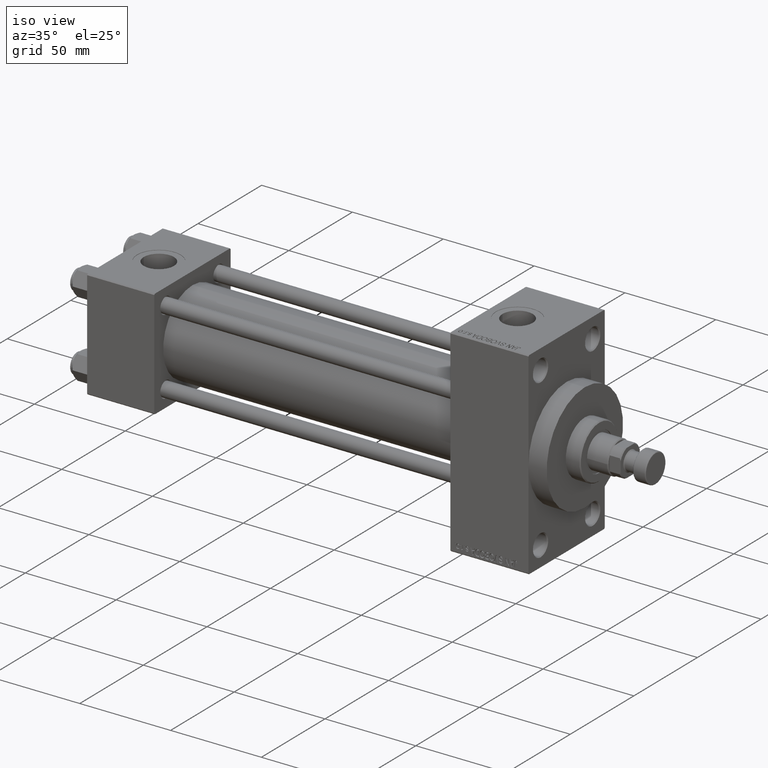
[diagram: clean part render]
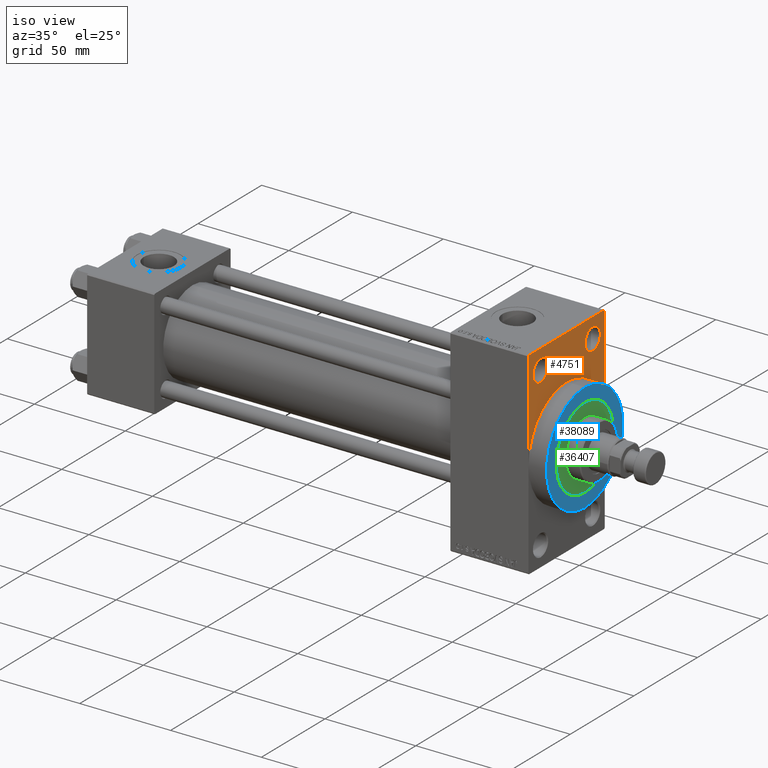
[diagram: same view with three faces highlighted in distinct colors, each labeled with its STEP entity id]
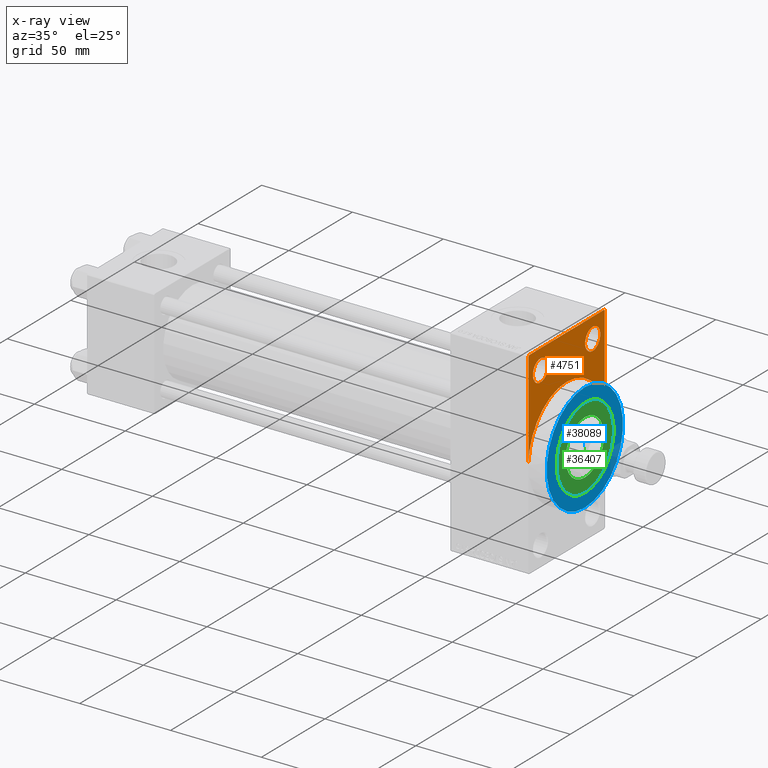
[diagram: x-ray of the same camera — body ghosted, the three highlighted faces saturated]
A machine part, iso view with three faces highlighted in distinct colors.
The next image is the same camera in x-ray (body ghosted, the three faces saturated) — at least one of them is partly hidden behind the body in this view.
Their STEP definitions:

[orange] entity #4751 — the highlighted planar face has unit normal (-1, 0, 0).
#108 = VERTEX_POINT ( 'NONE', #25134 ) ;
#388 = DIRECTION ( 'NONE',  ( 0.000000000000000000, 0.000000000000000000, 1.000000000000000000 ) ) ;
#457 = EDGE_CURVE ( 'NONE', #35063, #24671, #24903, .T. ) ;
#628 = CARTESIAN_POINT ( 'NONE',  ( 243.0000000000000000, 29.99999999999999645, 54.49999999999999289 ) ) ;
#860 = CARTESIAN_POINT ( 'NONE',  ( 243.0000000000000000, -30.00000000000000000, 54.00000000000002842 ) ) ;
#1334 = CARTESIAN_POINT ( 'NONE',  ( 243.0000000000000000, 29.49999999999999645, 54.49999999999999289 ) ) ;
#2226 = CARTESIAN_POINT ( 'NONE',  ( 243.0000000000000000, 29.99999999999999645, 53.99999999999996447 ) ) ;
#2247 = CARTESIAN_POINT ( 'NONE',  ( 243.0000000000000000, -20.50000000000000000, 37.50000000000002132 ) ) ;
#2938 = CIRCLE ( 'NONE', #38273, 5.999999999999977796 ) ;
#2994 = DIRECTION ( 'NONE',  ( 1.000000000000000000, 0.000000000000000000, 0.000000000000000000 ) ) ;
#3073 = ORIENTED_EDGE ( 'NONE', *, *, #49648, .F. ) ;
#3496 = CARTESIAN_POINT ( 'NONE',  ( 243.0000000000000000, 20.50000000000000000, 49.49999999999997158 ) ) ;
#4751 = ADVANCED_FACE ( 'NONE', ( #39638, #32341, #9214 ), #5175, .F. ) ;
#5175 = PLANE ( 'NONE',  #42813 ) ;
#5744 = DIRECTION ( 'NONE',  ( -1.000000000000000000, 0.000000000000000000, -0.000000000000000000 ) ) ;
#7147 = LINE ( 'NONE', #22471, #19844 ) ;
#7584 = AXIS2_PLACEMENT_3D ( 'NONE', #30832, #31572, #43135 ) ;
#8001 = DIRECTION ( 'NONE',  ( -1.000000000000000000, 0.000000000000000000, -0.000000000000000000 ) ) ;
#9128 = ORIENTED_EDGE ( 'NONE', *, *, #43663, .F. ) ;
#9143 = EDGE_CURVE ( 'NONE', #39744, #39632, #33109, .T. ) ;
#9214 = FACE_OUTER_BOUND ( 'NONE', #25297, .T. ) ;
#10417 = CIRCLE ( 'NONE', #24861, 5.999999999999977796 ) ;
#11092 = ORIENTED_EDGE ( 'NONE', *, *, #9143, .T. ) ;
#11173 = VERTEX_POINT ( 'NONE', #44969 ) ;
#12398 = VECTOR ( 'NONE', #38703, 1000.000000000000000 ) ;
#12405 = DIRECTION ( 'NONE',  ( 0.000000000000000000, -0.7071067811865279218, 0.7071067811865672237 ) ) ;
#12579 = CARTESIAN_POINT ( 'NONE',  ( 243.0000000000000000, -20.50000000000000000, 49.49999999999997158 ) ) ;
#13403 = ORIENTED_EDGE ( 'NONE', *, *, #47523, .T. ) ;
#14148 = ORIENTED_EDGE ( 'NONE', *, *, #457, .T. ) ;
#15378 = ORIENTED_EDGE ( 'NONE', *, *, #48317, .T. ) ;
#15959 = DIRECTION ( 'NONE',  ( 0.000000000000000000, -1.000000000000000000, 1.156482317317871478E-16 ) ) ;
#16422 = ORIENTED_EDGE ( 'NONE', *, *, #18486, .T. ) ;
#16549 = DIRECTION ( 'NONE',  ( 0.000000000000000000, 0.000000000000000000, 1.000000000000000000 ) ) ;
#17652 = EDGE_LOOP ( 'NONE', ( #21594, #14148 ) ) ;
#18326 = VERTEX_POINT ( 'NONE', #49667 ) ;
#18486 = EDGE_CURVE ( 'NONE', #41648, #31998, #20454, .T. ) ;
#18760 = CIRCLE ( 'NONE', #22791, 30.00000000000000000 ) ;
#19048 = DIRECTION ( 'NONE',  ( 0.000000000000000000, 0.000000000000000000, 1.000000000000000000 ) ) ;
#19844 = VECTOR ( 'NONE', #37325, 1000.000000000000000 ) ;
#19950 = CARTESIAN_POINT ( 'NONE',  ( 243.0000000000000000, -29.50000000000000355, 54.50000000000000000 ) ) ;
#20454 = LINE ( 'NONE', #860, #46989 ) ;
#20514 = CARTESIAN_POINT ( 'NONE',  ( 243.0000000000000000, 0.000000000000000000, 0.000000000000000000 ) ) ;
#20849 = ORIENTED_EDGE ( 'NONE', *, *, #35483, .T. ) ;
#21594 = ORIENTED_EDGE ( 'NONE', *, *, #28971, .T. ) ;
#21841 = AXIS2_PLACEMENT_3D ( 'NONE', #40202, #5744, #36677 ) ;
#22471 = CARTESIAN_POINT ( 'NONE',  ( 243.0000000000000000, 29.99999999999999645, 54.49999999999999289 ) ) ;
#22791 = AXIS2_PLACEMENT_3D ( 'NONE', #30160, #2994, #37449 ) ;
#23257 = CARTESIAN_POINT ( 'NONE',  ( 243.0000000000000000, -20.50000000000000000, 43.50000000000000000 ) ) ;
#23496 = LINE ( 'NONE', #628, #32617 ) ;
#24671 = VERTEX_POINT ( 'NONE', #44190 ) ;
#24861 = AXIS2_PLACEMENT_3D ( 'NONE', #41944, #8001, #19048 ) ;
#24903 = CIRCLE ( 'NONE', #31351, 5.999999999999977796 ) ;
#25134 = CARTESIAN_POINT ( 'NONE',  ( 243.0000000000000000, 29.49999999999999645, 54.49999999999999289 ) ) ;
#25297 = EDGE_LOOP ( 'NONE', ( #13403, #16422, #32181, #9128, #47232, #3073, #20849 ) ) ;
#27293 = DIRECTION ( 'NONE',  ( -1.000000000000000000, 0.000000000000000000, -0.000000000000000000 ) ) ;
#27623 = CARTESIAN_POINT ( 'NONE',  ( 243.0000000000000000, 20.50000000000000000, 43.50000000000000000 ) ) ;
#27752 = VERTEX_POINT ( 'NONE', #2226 ) ;
#28735 = LINE ( 'NONE', #1334, #33125 ) ;
#28971 = EDGE_CURVE ( 'NONE', #24671, #35063, #10417, .T. ) ;
#30160 = CARTESIAN_POINT ( 'NONE',  ( 243.0000000000000000, 0.000000000000000000, 0.000000000000000000 ) ) ;
#30832 = CARTESIAN_POINT ( 'NONE',  ( 243.0000000000000000, 0.000000000000000000, 0.000000000000000000 ) ) ;
#31351 = AXIS2_PLACEMENT_3D ( 'NONE', #27623, #35664, #16549 ) ;
#31566 = CARTESIAN_POINT ( 'NONE',  ( 243.0000000000000000, -30.00000000000000000, 54.00000000000002842 ) ) ;
#31572 = DIRECTION ( 'NONE',  ( 1.000000000000000000, 0.000000000000000000, 0.000000000000000000 ) ) ;
#31998 = VERTEX_POINT ( 'NONE', #31566 ) ;
#32181 = ORIENTED_EDGE ( 'NONE', *, *, #42978, .T. ) ;
#32341 = FACE_BOUND ( 'NONE', #17652, .T. ) ;
#32617 = VECTOR ( 'NONE', #15959, 1000.000000000000000 ) ;
#32754 = VERTEX_POINT ( 'NONE', #44721 ) ;
#33109 = CIRCLE ( 'NONE', #21841, 5.999999999999977796 ) ;
#33125 = VECTOR ( 'NONE', #12405, 1000.000000000000000 ) ;
#35063 = VERTEX_POINT ( 'NONE', #3496 ) ;
#35483 = EDGE_CURVE ( 'NONE', #27752, #108, #28735, .T. ) ;
#35664 = DIRECTION ( 'NONE',  ( -1.000000000000000000, 0.000000000000000000, -0.000000000000000000 ) ) ;
#35862 = DIRECTION ( 'NONE',  ( -1.000000000000000000, 0.000000000000000000, -0.000000000000000000 ) ) ;
#36677 = DIRECTION ( 'NONE',  ( 0.000000000000000000, 0.000000000000000000, 1.000000000000000000 ) ) ;
#37325 = DIRECTION ( 'NONE',  ( 0.000000000000000000, 0.000000000000000000, -1.000000000000000000 ) ) ;
#37449 = DIRECTION ( 'NONE',  ( 0.000000000000000000, 0.000000000000000000, -1.000000000000000000 ) ) ;
#38273 = AXIS2_PLACEMENT_3D ( 'NONE', #23257, #27293, #388 ) ;
#38317 = EDGE_LOOP ( 'NONE', ( #11092, #15378 ) ) ;
#38454 = CARTESIAN_POINT ( 'NONE',  ( 243.0000000000000000, -30.00000000000000000, 54.50000000000000000 ) ) ;
#38703 = DIRECTION ( 'NONE',  ( 0.000000000000000000, 0.000000000000000000, -1.000000000000000000 ) ) ;
#39330 = DIRECTION ( 'NONE',  ( -0.000000000000000000, -0.7071067811865647812, -0.7071067811865302533 ) ) ;
#39632 = VERTEX_POINT ( 'NONE', #12579 ) ;
#39638 = FACE_BOUND ( 'NONE', #38317, .T. ) ;
#39744 = VERTEX_POINT ( 'NONE', #2247 ) ;
#39889 = DIRECTION ( 'NONE',  ( -0.000000000000000000, 0.000000000000000000, 1.000000000000000000 ) ) ;
#40202 = CARTESIAN_POINT ( 'NONE',  ( 243.0000000000000000, -20.50000000000000000, 43.50000000000000000 ) ) ;
#41648 = VERTEX_POINT ( 'NONE', #19950 ) ;
#41944 = CARTESIAN_POINT ( 'NONE',  ( 243.0000000000000000, 20.50000000000000000, 43.50000000000000000 ) ) ;
#42011 = EDGE_CURVE ( 'NONE', #11173, #18326, #18760, .T. ) ;
#42813 = AXIS2_PLACEMENT_3D ( 'NONE', #20514, #35862, #39889 ) ;
#42973 = LINE ( 'NONE', #38454, #12398 ) ;
#42978 = EDGE_CURVE ( 'NONE', #31998, #32754, #42973, .T. ) ;
#43135 = DIRECTION ( 'NONE',  ( 0.000000000000000000, 0.000000000000000000, -1.000000000000000000 ) ) ;
#43663 = EDGE_CURVE ( 'NONE', #18326, #32754, #46142, .T. ) ;
#44190 = CARTESIAN_POINT ( 'NONE',  ( 243.0000000000000000, 20.50000000000000000, 37.50000000000002132 ) ) ;
#44721 = CARTESIAN_POINT ( 'NONE',  ( 243.0000000000000000, -30.00000000000000000, 0.000000000000000000 ) ) ;
#44969 = CARTESIAN_POINT ( 'NONE',  ( 243.0000000000000000, 30.00000000000000000, 0.000000000000000000 ) ) ;
#46142 = CIRCLE ( 'NONE', #7584, 30.00000000000000000 ) ;
#46989 = VECTOR ( 'NONE', #39330, 1000.000000000000114 ) ;
#47232 = ORIENTED_EDGE ( 'NONE', *, *, #42011, .F. ) ;
#47523 = EDGE_CURVE ( 'NONE', #108, #41648, #23496, .T. ) ;
#48317 = EDGE_CURVE ( 'NONE', #39632, #39744, #2938, .T. ) ;
#49648 = EDGE_CURVE ( 'NONE', #27752, #11173, #7147, .T. ) ;
#49667 = CARTESIAN_POINT ( 'NONE',  ( 243.0000000000000000, 0.000000000000000000, 30.00000000000000000 ) ) ;

[blue] entity #38089 — the highlighted planar face has unit normal (1, 0, 0).
#183 = CIRCLE ( 'NONE', #38732, 30.00000000000000000 ) ;
#340 = DIRECTION ( 'NONE',  ( 0.000000000000000000, 0.000000000000000000, -1.000000000000000000 ) ) ;
#1140 = EDGE_CURVE ( 'NONE', #31547, #32821, #10453, .T. ) ;
#1160 = AXIS2_PLACEMENT_3D ( 'NONE', #48908, #11410, #30780 ) ;
#3853 = DIRECTION ( 'NONE',  ( 1.000000000000000000, 0.000000000000000000, 0.000000000000000000 ) ) ;
#5618 = DIRECTION ( 'NONE',  ( 1.000000000000000000, 0.000000000000000000, 0.000000000000000000 ) ) ;
#6825 = AXIS2_PLACEMENT_3D ( 'NONE', #34795, #3853, #340 ) ;
#9433 = EDGE_CURVE ( 'NONE', #32821, #31547, #183, .T. ) ;
#10229 = DIRECTION ( 'NONE',  ( 0.000000000000000000, 0.000000000000000000, -1.000000000000000000 ) ) ;
#10453 = CIRCLE ( 'NONE', #38558, 30.00000000000000000 ) ;
#11410 = DIRECTION ( 'NONE',  ( 1.000000000000000000, 0.000000000000000000, 0.000000000000000000 ) ) ;
#13993 = FACE_OUTER_BOUND ( 'NONE', #33308, .T. ) ;
#17584 = ORIENTED_EDGE ( 'NONE', *, *, #44910, .F. ) ;
#22317 = CARTESIAN_POINT ( 'NONE',  ( 253.0000000000000000, 0.000000000000000000, 30.00000000000000000 ) ) ;
#27515 = CARTESIAN_POINT ( 'NONE',  ( 253.0000000000000000, 0.000000000000000000, 0.000000000000000000 ) ) ;
#29329 = CARTESIAN_POINT ( 'NONE',  ( 253.0000000000000000, 0.000000000000000000, 0.000000000000000000 ) ) ;
#29572 = PLANE ( 'NONE',  #30672 ) ;
#30244 = ORIENTED_EDGE ( 'NONE', *, *, #43431, .F. ) ;
#30672 = AXIS2_PLACEMENT_3D ( 'NONE', #29329, #44669, #10229 ) ;
#30780 = DIRECTION ( 'NONE',  ( 0.000000000000000000, 0.000000000000000000, -1.000000000000000000 ) ) ;
#31193 = EDGE_LOOP ( 'NONE', ( #17584, #30244 ) ) ;
#31547 = VERTEX_POINT ( 'NONE', #46585 ) ;
#32821 = VERTEX_POINT ( 'NONE', #22317 ) ;
#33308 = EDGE_LOOP ( 'NONE', ( #36756, #45667 ) ) ;
#34795 = CARTESIAN_POINT ( 'NONE',  ( 253.0000000000000000, 0.000000000000000000, 0.000000000000000000 ) ) ;
#34939 = CIRCLE ( 'NONE', #6825, 22.50000000000000355 ) ;
#34958 = CARTESIAN_POINT ( 'NONE',  ( 253.0000000000000000, 2.755455298081545172E-15, 22.50000000000000355 ) ) ;
#35689 = CIRCLE ( 'NONE', #1160, 22.50000000000000355 ) ;
#36756 = ORIENTED_EDGE ( 'NONE', *, *, #9433, .T. ) ;
#36880 = FACE_BOUND ( 'NONE', #31193, .T. ) ;
#36957 = VERTEX_POINT ( 'NONE', #39942 ) ;
#38089 = ADVANCED_FACE ( 'NONE', ( #36880, #13993 ), #29572, .T. ) ;
#38558 = AXIS2_PLACEMENT_3D ( 'NONE', #43910, #44649, #39629 ) ;
#38732 = AXIS2_PLACEMENT_3D ( 'NONE', #27515, #5618, #43855 ) ;
#38823 = VERTEX_POINT ( 'NONE', #34958 ) ;
#39629 = DIRECTION ( 'NONE',  ( 0.000000000000000000, 0.000000000000000000, -1.000000000000000000 ) ) ;
#39942 = CARTESIAN_POINT ( 'NONE',  ( 253.0000000000000000, 0.000000000000000000, -22.50000000000000355 ) ) ;
#43431 = EDGE_CURVE ( 'NONE', #38823, #36957, #35689, .T. ) ;
#43855 = DIRECTION ( 'NONE',  ( 0.000000000000000000, 0.000000000000000000, -1.000000000000000000 ) ) ;
#43910 = CARTESIAN_POINT ( 'NONE',  ( 253.0000000000000000, 0.000000000000000000, 0.000000000000000000 ) ) ;
#44649 = DIRECTION ( 'NONE',  ( 1.000000000000000000, 0.000000000000000000, 0.000000000000000000 ) ) ;
#44669 = DIRECTION ( 'NONE',  ( 1.000000000000000000, 0.000000000000000000, 0.000000000000000000 ) ) ;
#44910 = EDGE_CURVE ( 'NONE', #36957, #38823, #34939, .T. ) ;
#45667 = ORIENTED_EDGE ( 'NONE', *, *, #1140, .T. ) ;
#46585 = CARTESIAN_POINT ( 'NONE',  ( 253.0000000000000000, 3.673940397442059178E-15, -30.00000000000000000 ) ) ;
#48908 = CARTESIAN_POINT ( 'NONE',  ( 253.0000000000000000, 0.000000000000000000, 0.000000000000000000 ) ) ;

[green] entity #36407 — the highlighted planar face has unit normal (1, -0, -0).
#3960 = EDGE_LOOP ( 'NONE', ( #46324, #42570 ) ) ;
#4142 = DIRECTION ( 'NONE',  ( 0.000000000000000000, 0.000000000000000000, 1.000000000000000000 ) ) ;
#6032 = DIRECTION ( 'NONE',  ( 0.000000000000000000, 0.000000000000000000, 1.000000000000000000 ) ) ;
#6042 = AXIS2_PLACEMENT_3D ( 'NONE', #44257, #6032, #9808 ) ;
#6859 = EDGE_CURVE ( 'NONE', #17170, #29328, #36228, .T. ) ;
#6961 = DIRECTION ( 'NONE',  ( 0.000000000000000000, 0.000000000000000000, 1.000000000000000000 ) ) ;
#7330 = DIRECTION ( 'NONE',  ( 1.000000000000000000, 0.000000000000000000, -0.000000000000000000 ) ) ;
#7785 = CIRCLE ( 'NONE', #43912, 22.50000000000000355 ) ;
#8531 = CARTESIAN_POINT ( 'NONE',  ( -22.50000000000000355, 0.000000000000000000, 43.25999999999999801 ) ) ;
#8904 = VERTEX_POINT ( 'NONE', #21868 ) ;
#8923 = CARTESIAN_POINT ( 'NONE',  ( 22.50000000000000355, 2.755455298081545172E-15, 43.25999999999999801 ) ) ;
#9808 = DIRECTION ( 'NONE',  ( 1.000000000000000000, 0.000000000000000000, 0.000000000000000000 ) ) ;
#11647 = EDGE_CURVE ( 'NONE', #8904, #16284, #25190, .T. ) ;
#12185 = CARTESIAN_POINT ( 'NONE',  ( 0.000000000000000000, 0.000000000000000000, 43.25999999999999801 ) ) ;
#15541 = AXIS2_PLACEMENT_3D ( 'NONE', #46899, #4142, #35085 ) ;
#16284 = VERTEX_POINT ( 'NONE', #22531 ) ;
#17170 = VERTEX_POINT ( 'NONE', #8531 ) ;
#17234 = ORIENTED_EDGE ( 'NONE', *, *, #11647, .F. ) ;
#21782 = EDGE_LOOP ( 'NONE', ( #17234, #25624 ) ) ;
#21868 = CARTESIAN_POINT ( 'NONE',  ( -15.00000000000000000, 0.000000000000000000, 43.25999999999999801 ) ) ;
#22531 = CARTESIAN_POINT ( 'NONE',  ( 15.00000000000000000, 1.836970198721029589E-15, 43.25999999999999801 ) ) ;
#22583 = EDGE_CURVE ( 'NONE', #29328, #17170, #7785, .T. ) ;
#25190 = CIRCLE ( 'NONE', #15541, 15.00000000000000000 ) ;
#25624 = ORIENTED_EDGE ( 'NONE', *, *, #45425, .F. ) ;
#26565 = DIRECTION ( 'NONE',  ( 1.000000000000000000, 0.000000000000000000, 0.000000000000000000 ) ) ;
#26943 = FACE_BOUND ( 'NONE', #21782, .T. ) ;
#29328 = VERTEX_POINT ( 'NONE', #8923 ) ;
#30812 = DIRECTION ( 'NONE',  ( 0.000000000000000000, 0.000000000000000000, 1.000000000000000000 ) ) ;
#32207 = AXIS2_PLACEMENT_3D ( 'NONE', #37387, #6961, #26565 ) ;
#34491 = FACE_OUTER_BOUND ( 'NONE', #3960, .T. ) ;
#35085 = DIRECTION ( 'NONE',  ( 1.000000000000000000, 0.000000000000000000, 0.000000000000000000 ) ) ;
#35322 = DIRECTION ( 'NONE',  ( 1.000000000000000000, 0.000000000000000000, 0.000000000000000000 ) ) ;
#36228 = CIRCLE ( 'NONE', #32207, 22.50000000000000355 ) ;
#36351 = AXIS2_PLACEMENT_3D ( 'NONE', #46051, #38261, #7330 ) ;
#36407 = ADVANCED_FACE ( 'NONE', ( #26943, #34491 ), #49589, .T. ) ;
#37387 = CARTESIAN_POINT ( 'NONE',  ( 0.000000000000000000, 0.000000000000000000, 43.25999999999999801 ) ) ;
#38261 = DIRECTION ( 'NONE',  ( 0.000000000000000000, 0.000000000000000000, 1.000000000000000000 ) ) ;
#42570 = ORIENTED_EDGE ( 'NONE', *, *, #22583, .T. ) ;
#43912 = AXIS2_PLACEMENT_3D ( 'NONE', #12185, #30812, #35322 ) ;
#44257 = CARTESIAN_POINT ( 'NONE',  ( 0.000000000000000000, 0.000000000000000000, 43.25999999999999801 ) ) ;
#45425 = EDGE_CURVE ( 'NONE', #16284, #8904, #47004, .T. ) ;
#46051 = CARTESIAN_POINT ( 'NONE',  ( 0.000000000000000000, 0.000000000000000000, 43.25999999999999801 ) ) ;
#46324 = ORIENTED_EDGE ( 'NONE', *, *, #6859, .T. ) ;
#46899 = CARTESIAN_POINT ( 'NONE',  ( 0.000000000000000000, 0.000000000000000000, 43.25999999999999801 ) ) ;
#47004 = CIRCLE ( 'NONE', #6042, 15.00000000000000000 ) ;
#49589 = PLANE ( 'NONE',  #36351 ) ;